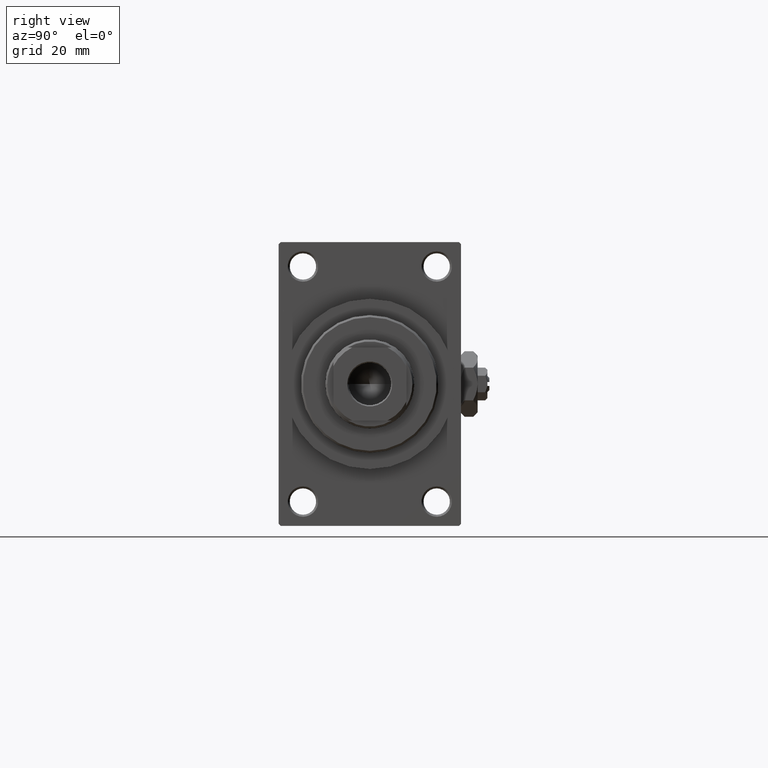
[diagram: clean part render]
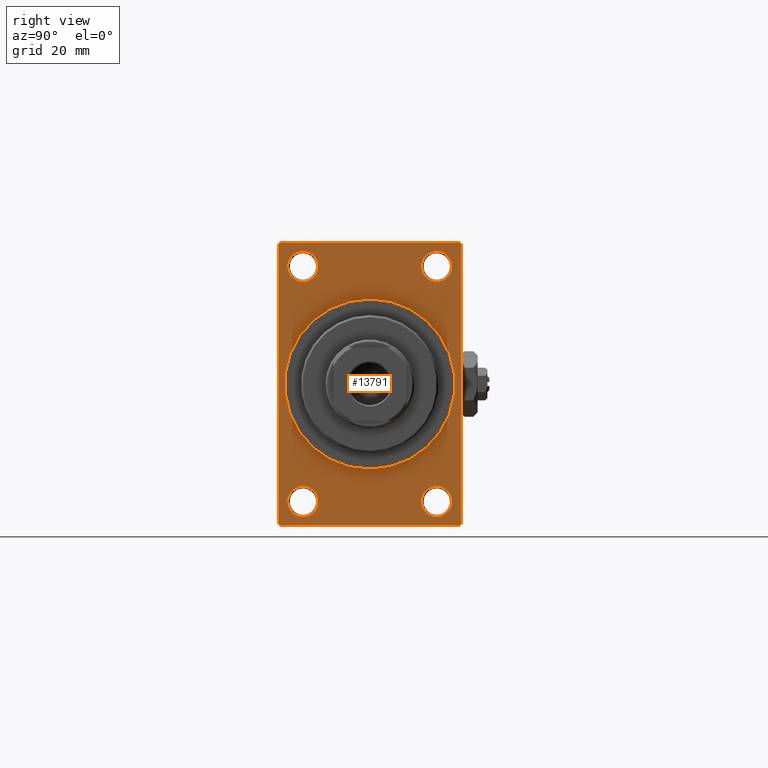
[diagram: same view with one face highlighted and labeled with its STEP entity id]
A machine part, right view. The second image highlights one B-rep face of the part: STEP entity #13791.
In plain terms, the highlighted planar face has unit normal (-1, 0, 0).
Its self-contained STEP definition (entity closure, byte-faithful):
#17 = DIRECTION ( 'NONE',  ( 0.000000000000000000, 0.000000000000000000, -1.000000000000000000 ) ) ;
#225 = AXIS2_PLACEMENT_3D ( 'NONE', #38120, #1105, #11794 ) ;
#454 = EDGE_LOOP ( 'NONE', ( #32282, #44936 ) ) ;
#486 = DIRECTION ( 'NONE',  ( -1.000000000000000000, 0.000000000000000000, -0.000000000000000000 ) ) ;
#588 = DIRECTION ( 'NONE',  ( 1.000000000000000000, 0.000000000000000000, 0.000000000000000000 ) ) ;
#752 = CARTESIAN_POINT ( 'NONE',  ( 113.0000000000000142, -22.50000000000000355, 35.00000000000000000 ) ) ;
#1105 = DIRECTION ( 'NONE',  ( -1.000000000000000000, -0.000000000000000000, -0.000000000000000000 ) ) ;
#1539 = ORIENTED_EDGE ( 'NONE', *, *, #27639, .F. ) ;
#1668 = CARTESIAN_POINT ( 'NONE',  ( 113.0000000000000142, 22.49999999999999645, 35.00000000000000000 ) ) ;
#2213 = EDGE_CURVE ( 'NONE', #20014, #34678, #27702, .T. ) ;
#2238 = EDGE_CURVE ( 'NONE', #15235, #20886, #40403, .T. ) ;
#2374 = VECTOR ( 'NONE', #32580, 1000.000000000000114 ) ;
#2618 = AXIS2_PLACEMENT_3D ( 'NONE', #13245, #28392, #14454 ) ;
#3029 = CARTESIAN_POINT ( 'NONE',  ( 113.0000000000000142, 22.49999999999999645, -35.00000000000000000 ) ) ;
#3683 = DIRECTION ( 'NONE',  ( -0.000000000000000000, -0.7071067811865474617, -0.7071067811865474617 ) ) ;
#3974 = ORIENTED_EDGE ( 'NONE', *, *, #2213, .T. ) ;
#4187 = DIRECTION ( 'NONE',  ( 0.000000000000000000, 0.000000000000000000, 1.000000000000000000 ) ) ;
#4436 = ORIENTED_EDGE ( 'NONE', *, *, #14401, .T. ) ;
#4650 = EDGE_CURVE ( 'NONE', #13180, #16324, #22271, .T. ) ;
#4834 = VECTOR ( 'NONE', #28246, 999.9999999999998863 ) ;
#5086 = AXIS2_PLACEMENT_3D ( 'NONE', #20045, #12870, #13120 ) ;
#5468 = ORIENTED_EDGE ( 'NONE', *, *, #10766, .T. ) ;
#5550 = EDGE_CURVE ( 'NONE', #15294, #20946, #42381, .T. ) ;
#5654 = VERTEX_POINT ( 'NONE', #10072 ) ;
#5887 = DIRECTION ( 'NONE',  ( 0.000000000000000000, -1.000000000000000000, 0.000000000000000000 ) ) ;
#5917 = DIRECTION ( 'NONE',  ( -1.000000000000000000, -0.000000000000000000, -0.000000000000000000 ) ) ;
#6081 = ORIENTED_EDGE ( 'NONE', *, *, #9654, .T. ) ;
#6424 = DIRECTION ( 'NONE',  ( -1.000000000000000000, -0.000000000000000000, -0.000000000000000000 ) ) ;
#6595 = CIRCLE ( 'NONE', #2618, 3.750000000000076383 ) ;
#7427 = VERTEX_POINT ( 'NONE', #30610 ) ;
#7699 = CARTESIAN_POINT ( 'NONE',  ( 113.0000000000000142, 22.49999999999999645, -34.50000000000000000 ) ) ;
#7707 = CARTESIAN_POINT ( 'NONE',  ( 113.0000000000000142, 0.000000000000000000, 0.000000000000000000 ) ) ;
#7840 = CARTESIAN_POINT ( 'NONE',  ( 113.0000000000000142, -22.50000000000000355, -34.49999999999997158 ) ) ;
#7850 = LINE ( 'NONE', #20233, #19141 ) ;
#7882 = ORIENTED_EDGE ( 'NONE', *, *, #5550, .F. ) ;
#8578 = ORIENTED_EDGE ( 'NONE', *, *, #48070, .T. ) ;
#8972 = EDGE_CURVE ( 'NONE', #23209, #5654, #16540, .T. ) ;
#9432 = VERTEX_POINT ( 'NONE', #39491 ) ;
#9654 = EDGE_CURVE ( 'NONE', #30409, #33948, #17281, .T. ) ;
#10072 = CARTESIAN_POINT ( 'NONE',  ( 113.0000000000000142, -21.99999999999998934, 35.00000000000000000 ) ) ;
#10210 = VERTEX_POINT ( 'NONE', #37828 ) ;
#10547 = EDGE_LOOP ( 'NONE', ( #42169, #3974 ) ) ;
#10766 = EDGE_CURVE ( 'NONE', #7427, #20946, #7850, .T. ) ;
#11794 = DIRECTION ( 'NONE',  ( 0.000000000000000000, 0.000000000000000000, 1.000000000000000000 ) ) ;
#12056 = EDGE_CURVE ( 'NONE', #34678, #20014, #35866, .T. ) ;
#12406 = PLANE ( 'NONE',  #38300 ) ;
#12707 = VERTEX_POINT ( 'NONE', #34323 ) ;
#12870 = DIRECTION ( 'NONE',  ( 1.000000000000000000, 0.000000000000000000, 0.000000000000000000 ) ) ;
#12935 = CARTESIAN_POINT ( 'NONE',  ( 113.0000000000000142, 21.99999999999999645, 35.00000000000000000 ) ) ;
#13120 = DIRECTION ( 'NONE',  ( 0.000000000000000000, 0.000000000000000000, -1.000000000000000000 ) ) ;
#13180 = VERTEX_POINT ( 'NONE', #18236 ) ;
#13245 = CARTESIAN_POINT ( 'NONE',  ( 113.0000000000000142, -16.50000000000000000, -28.99999999999999289 ) ) ;
#13374 = ORIENTED_EDGE ( 'NONE', *, *, #44306, .T. ) ;
#13509 = CARTESIAN_POINT ( 'NONE',  ( 113.0000000000000142, 16.50000000000000000, -28.99999999999999289 ) ) ;
#13791 = ADVANCED_FACE ( 'NONE', ( #16105, #45445, #19340, #22825, #42457, #15134 ), #12406, .F. ) ;
#14003 = ORIENTED_EDGE ( 'NONE', *, *, #8972, .T. ) ;
#14401 = EDGE_CURVE ( 'NONE', #30745, #12707, #36702, .T. ) ;
#14443 = AXIS2_PLACEMENT_3D ( 'NONE', #39939, #5917, #28756 ) ;
#14447 = DIRECTION ( 'NONE',  ( -1.000000000000000000, -0.000000000000000000, -0.000000000000000000 ) ) ;
#14454 = DIRECTION ( 'NONE',  ( 0.000000000000000000, 0.000000000000000000, 1.000000000000000000 ) ) ;
#14557 = CARTESIAN_POINT ( 'NONE',  ( 113.0000000000000142, 16.50000000000000000, -32.75000000000007105 ) ) ;
#15134 = FACE_OUTER_BOUND ( 'NONE', #22365, .T. ) ;
#15235 = VERTEX_POINT ( 'NONE', #33686 ) ;
#15294 = VERTEX_POINT ( 'NONE', #48822 ) ;
#15354 = DIRECTION ( 'NONE',  ( -1.000000000000000000, -0.000000000000000000, -0.000000000000000000 ) ) ;
#16105 = FACE_BOUND ( 'NONE', #20342, .T. ) ;
#16215 = CARTESIAN_POINT ( 'NONE',  ( 113.0000000000000142, 16.50000000000000000, 29.00000000000000355 ) ) ;
#16324 = VERTEX_POINT ( 'NONE', #14557 ) ;
#16540 = LINE ( 'NONE', #1668, #21487 ) ;
#17281 = LINE ( 'NONE', #40394, #4834 ) ;
#17383 = VECTOR ( 'NONE', #21644, 1000.000000000000000 ) ;
#17389 = LINE ( 'NONE', #39538, #2374 ) ;
#18079 = LINE ( 'NONE', #18327, #47111 ) ;
#18236 = CARTESIAN_POINT ( 'NONE',  ( 113.0000000000000142, 16.50000000000000000, -25.24999999999992184 ) ) ;
#18327 = CARTESIAN_POINT ( 'NONE',  ( 113.0000000000000142, -22.50000000000000355, 34.50000000000000000 ) ) ;
#18579 = EDGE_LOOP ( 'NONE', ( #23580, #47064 ) ) ;
#18976 = AXIS2_PLACEMENT_3D ( 'NONE', #31401, #588, #30900 ) ;
#19141 = VECTOR ( 'NONE', #38388, 1000.000000000000114 ) ;
#19340 = FACE_BOUND ( 'NONE', #18579, .T. ) ;
#19936 = EDGE_CURVE ( 'NONE', #20886, #15235, #45534, .T. ) ;
#19994 = DIRECTION ( 'NONE',  ( 0.000000000000000000, 0.000000000000000000, -1.000000000000000000 ) ) ;
#20014 = VERTEX_POINT ( 'NONE', #36685 ) ;
#20045 = CARTESIAN_POINT ( 'NONE',  ( 113.0000000000000142, 0.000000000000000000, 0.000000000000000000 ) ) ;
#20233 = CARTESIAN_POINT ( 'NONE',  ( 113.0000000000000142, 22.49999999999999645, -34.50000000000000000 ) ) ;
#20342 = EDGE_LOOP ( 'NONE', ( #8578, #4436 ) ) ;
#20539 = ORIENTED_EDGE ( 'NONE', *, *, #46038, .T. ) ;
#20886 = VERTEX_POINT ( 'NONE', #36507 ) ;
#20946 = VERTEX_POINT ( 'NONE', #7699 ) ;
#20997 = AXIS2_PLACEMENT_3D ( 'NONE', #36958, #6424, #33241 ) ;
#21487 = VECTOR ( 'NONE', #5887, 1000.000000000000000 ) ;
#21644 = DIRECTION ( 'NONE',  ( 0.000000000000000000, -1.000000000000000000, 0.000000000000000000 ) ) ;
#22271 = CIRCLE ( 'NONE', #27030, 3.750000000000076383 ) ;
#22365 = EDGE_LOOP ( 'NONE', ( #28735, #6081, #1539, #5468, #7882, #35749, #14003, #20539 ) ) ;
#22825 = FACE_BOUND ( 'NONE', #10547, .T. ) ;
#23045 = CARTESIAN_POINT ( 'NONE',  ( 113.0000000000000142, 16.50000000000000000, -28.99999999999999289 ) ) ;
#23209 = VERTEX_POINT ( 'NONE', #12935 ) ;
#23345 = LINE ( 'NONE', #752, #47964 ) ;
#23580 = ORIENTED_EDGE ( 'NONE', *, *, #29327, .T. ) ;
#23722 = CARTESIAN_POINT ( 'NONE',  ( 113.0000000000000142, 22.49999999999999645, 35.00000000000000000 ) ) ;
#25618 = DIRECTION ( 'NONE',  ( 0.000000000000000000, 0.000000000000000000, 1.000000000000000000 ) ) ;
#26571 = CIRCLE ( 'NONE', #47996, 3.750000000000069278 ) ;
#27030 = AXIS2_PLACEMENT_3D ( 'NONE', #23045, #15354, #4187 ) ;
#27639 = EDGE_CURVE ( 'NONE', #7427, #33948, #29360, .T. ) ;
#27702 = CIRCLE ( 'NONE', #44375, 3.750000000000072831 ) ;
#28246 = DIRECTION ( 'NONE',  ( 0.000000000000000000, 0.7071067811865376918, -0.7071067811865574537 ) ) ;
#28392 = DIRECTION ( 'NONE',  ( -1.000000000000000000, -0.000000000000000000, -0.000000000000000000 ) ) ;
#28539 = AXIS2_PLACEMENT_3D ( 'NONE', #13509, #39849, #47786 ) ;
#28641 = VECTOR ( 'NONE', #19994, 1000.000000000000000 ) ;
#28735 = ORIENTED_EDGE ( 'NONE', *, *, #47157, .T. ) ;
#28756 = DIRECTION ( 'NONE',  ( 0.000000000000000000, 0.000000000000000000, 1.000000000000000000 ) ) ;
#28965 = EDGE_CURVE ( 'NONE', #15294, #23209, #17389, .T. ) ;
#29327 = EDGE_CURVE ( 'NONE', #16324, #13180, #33891, .T. ) ;
#29360 = LINE ( 'NONE', #3029, #17383 ) ;
#29604 = CARTESIAN_POINT ( 'NONE',  ( 113.0000000000000142, -16.50000000000000000, 29.00000000000000711 ) ) ;
#29927 = CARTESIAN_POINT ( 'NONE',  ( 113.0000000000000142, -16.50000000000000000, 32.75000000000007816 ) ) ;
#30409 = VERTEX_POINT ( 'NONE', #7840 ) ;
#30610 = CARTESIAN_POINT ( 'NONE',  ( 113.0000000000000142, 21.99999999999999645, -35.00000000000000000 ) ) ;
#30745 = VERTEX_POINT ( 'NONE', #29927 ) ;
#30900 = DIRECTION ( 'NONE',  ( 0.000000000000000000, 0.000000000000000000, -1.000000000000000000 ) ) ;
#31401 = CARTESIAN_POINT ( 'NONE',  ( 113.0000000000000142, 0.000000000000000000, 0.000000000000000000 ) ) ;
#32282 = ORIENTED_EDGE ( 'NONE', *, *, #19936, .F. ) ;
#32580 = DIRECTION ( 'NONE',  ( 0.000000000000000000, -0.7071067811865474617, 0.7071067811865474617 ) ) ;
#33241 = DIRECTION ( 'NONE',  ( 0.000000000000000000, 0.000000000000000000, 1.000000000000000000 ) ) ;
#33686 = CARTESIAN_POINT ( 'NONE',  ( 113.0000000000000142, 2.571758278209441661E-15, -21.00000000000000000 ) ) ;
#33891 = CIRCLE ( 'NONE', #28539, 3.750000000000076383 ) ;
#33948 = VERTEX_POINT ( 'NONE', #46652 ) ;
#34323 = CARTESIAN_POINT ( 'NONE',  ( 113.0000000000000142, -16.50000000000000000, 25.24999999999993960 ) ) ;
#34678 = VERTEX_POINT ( 'NONE', #46777 ) ;
#35104 = DIRECTION ( 'NONE',  ( 0.000000000000000000, 0.000000000000000000, 1.000000000000000000 ) ) ;
#35749 = ORIENTED_EDGE ( 'NONE', *, *, #28965, .T. ) ;
#35866 = CIRCLE ( 'NONE', #14443, 3.750000000000072831 ) ;
#36507 = CARTESIAN_POINT ( 'NONE',  ( 113.0000000000000142, 0.000000000000000000, 21.00000000000000000 ) ) ;
#36685 = CARTESIAN_POINT ( 'NONE',  ( 113.0000000000000142, 16.50000000000000000, 32.75000000000007816 ) ) ;
#36702 = CIRCLE ( 'NONE', #225, 3.750000000000069278 ) ;
#36958 = CARTESIAN_POINT ( 'NONE',  ( 113.0000000000000142, -16.50000000000000000, -28.99999999999999289 ) ) ;
#37828 = CARTESIAN_POINT ( 'NONE',  ( 113.0000000000000142, -16.50000000000000000, -32.75000000000007105 ) ) ;
#38089 = DIRECTION ( 'NONE',  ( -1.000000000000000000, -0.000000000000000000, -0.000000000000000000 ) ) ;
#38120 = CARTESIAN_POINT ( 'NONE',  ( 113.0000000000000142, -16.50000000000000000, 29.00000000000000711 ) ) ;
#38300 = AXIS2_PLACEMENT_3D ( 'NONE', #7707, #486, #38973 ) ;
#38388 = DIRECTION ( 'NONE',  ( -0.000000000000000000, 0.7071067811865474617, 0.7071067811865474617 ) ) ;
#38973 = DIRECTION ( 'NONE',  ( -0.000000000000000000, 0.000000000000000000, 1.000000000000000000 ) ) ;
#39083 = EDGE_CURVE ( 'NONE', #10210, #41093, #6595, .T. ) ;
#39491 = CARTESIAN_POINT ( 'NONE',  ( 113.0000000000000142, -22.50000000000000355, 34.50000000000000000 ) ) ;
#39538 = CARTESIAN_POINT ( 'NONE',  ( 113.0000000000000142, 21.99999999999999645, 35.00000000000000000 ) ) ;
#39849 = DIRECTION ( 'NONE',  ( -1.000000000000000000, -0.000000000000000000, -0.000000000000000000 ) ) ;
#39939 = CARTESIAN_POINT ( 'NONE',  ( 113.0000000000000142, 16.50000000000000000, 29.00000000000000355 ) ) ;
#40394 = CARTESIAN_POINT ( 'NONE',  ( 113.0000000000000142, -21.99999999999998934, -35.00000000000000000 ) ) ;
#40403 = CIRCLE ( 'NONE', #18976, 21.00000000000000000 ) ;
#40486 = CARTESIAN_POINT ( 'NONE',  ( 113.0000000000000142, -16.50000000000000000, -25.24999999999992184 ) ) ;
#40511 = ORIENTED_EDGE ( 'NONE', *, *, #39083, .T. ) ;
#41093 = VERTEX_POINT ( 'NONE', #40486 ) ;
#42169 = ORIENTED_EDGE ( 'NONE', *, *, #12056, .T. ) ;
#42381 = LINE ( 'NONE', #23722, #28641 ) ;
#42430 = CIRCLE ( 'NONE', #20997, 3.750000000000076383 ) ;
#42457 = FACE_BOUND ( 'NONE', #454, .T. ) ;
#43032 = EDGE_LOOP ( 'NONE', ( #40511, #13374 ) ) ;
#44306 = EDGE_CURVE ( 'NONE', #41093, #10210, #42430, .T. ) ;
#44375 = AXIS2_PLACEMENT_3D ( 'NONE', #16215, #38089, #35104 ) ;
#44936 = ORIENTED_EDGE ( 'NONE', *, *, #2238, .F. ) ;
#45445 = FACE_BOUND ( 'NONE', #43032, .T. ) ;
#45534 = CIRCLE ( 'NONE', #5086, 21.00000000000000000 ) ;
#46038 = EDGE_CURVE ( 'NONE', #5654, #9432, #18079, .T. ) ;
#46652 = CARTESIAN_POINT ( 'NONE',  ( 113.0000000000000142, -21.99999999999997513, -35.00000000000000000 ) ) ;
#46777 = CARTESIAN_POINT ( 'NONE',  ( 113.0000000000000142, 16.50000000000000000, 25.24999999999993250 ) ) ;
#47064 = ORIENTED_EDGE ( 'NONE', *, *, #4650, .T. ) ;
#47111 = VECTOR ( 'NONE', #3683, 1000.000000000000114 ) ;
#47157 = EDGE_CURVE ( 'NONE', #9432, #30409, #23345, .T. ) ;
#47786 = DIRECTION ( 'NONE',  ( 0.000000000000000000, 0.000000000000000000, 1.000000000000000000 ) ) ;
#47964 = VECTOR ( 'NONE', #17, 1000.000000000000000 ) ;
#47996 = AXIS2_PLACEMENT_3D ( 'NONE', #29604, #14447, #25618 ) ;
#48070 = EDGE_CURVE ( 'NONE', #12707, #30745, #26571, .T. ) ;
#48822 = CARTESIAN_POINT ( 'NONE',  ( 113.0000000000000142, 22.49999999999999645, 34.50000000000000000 ) ) ;